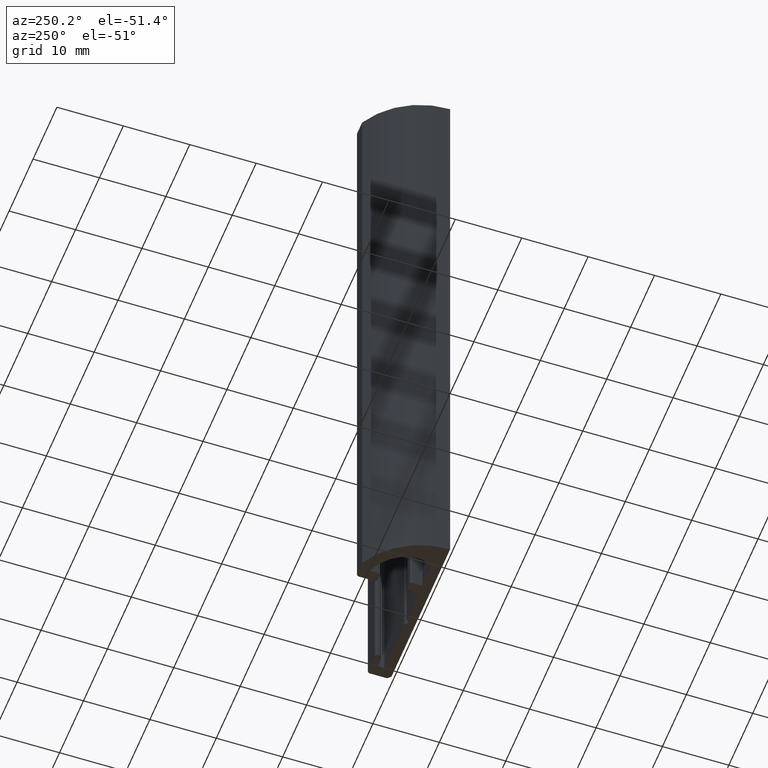
[diagram: clean part render]
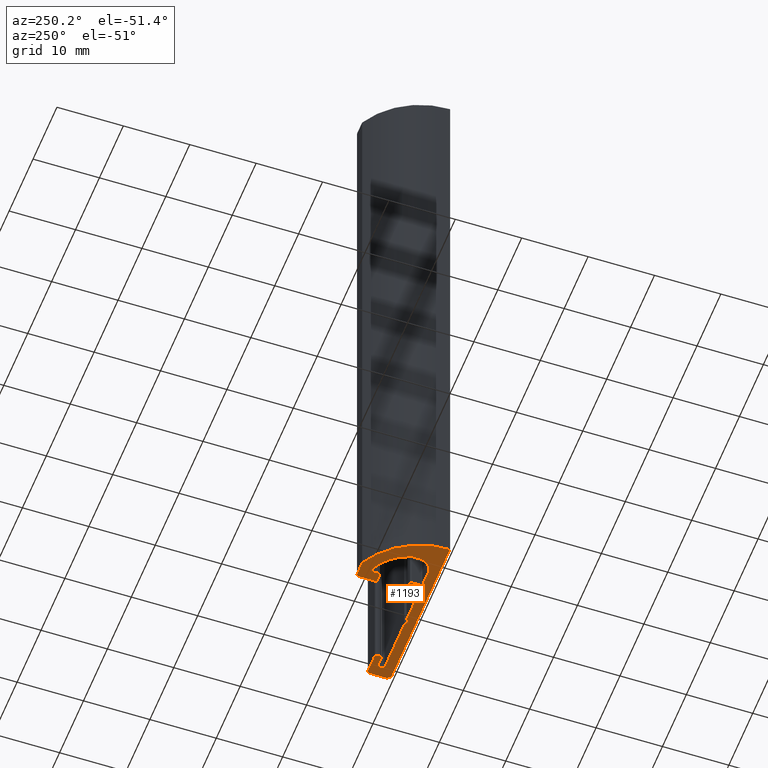
[diagram: same view with one face highlighted and labeled with its STEP entity id]
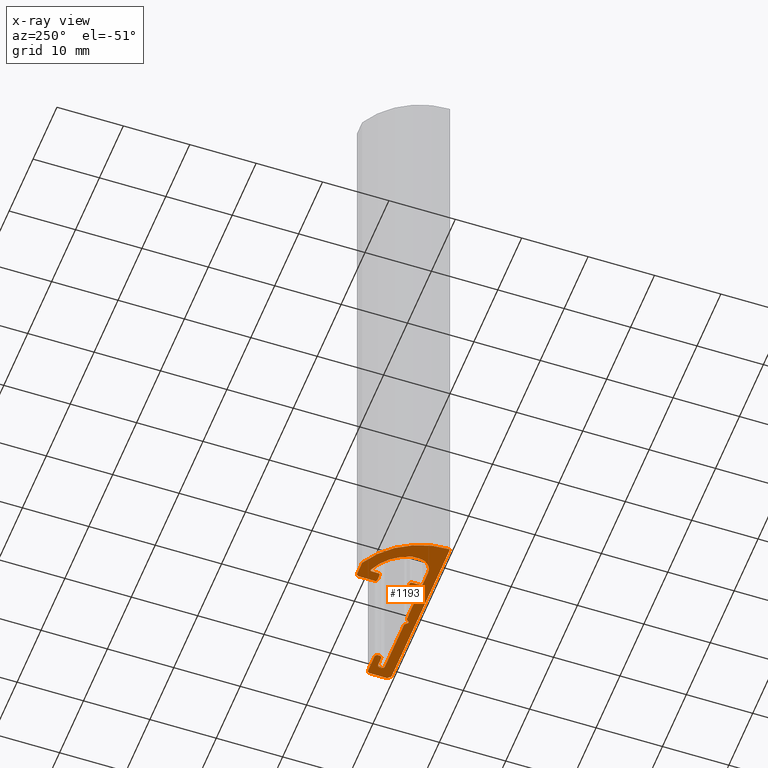
[diagram: x-ray of the same camera — body ghosted, the highlighted face saturated]
A machine part, auxiliary view. The second image highlights one B-rep face of the part: STEP entity #1193.
The next image is the same camera in x-ray: the body ghosted, the highlighted face saturated — about 0% of this face is hidden behind the body in this view.
In plain terms, the highlighted planar face has unit normal (0, 0, 1).
Its self-contained STEP definition (entity closure, byte-faithful):
#7=CARTESIAN_POINT('',(9.244307432465462,3.099999999671184,0.0));
#8=VERTEX_POINT('',#7);
#9=CARTESIAN_POINT('',(9.244307432571418,2.899999999701663,0.0));
#10=VERTEX_POINT('',#9);
#11=CARTESIAN_POINT('',(9.244307432465462,3.099999999671184,0.0));
#12=DIRECTION('',(5.297807E-010,-1.0,0.0));
#13=VECTOR('',#12,0.199999999969521);
#14=LINE('',#11,#13);
#15=EDGE_CURVE('',#8,#10,#14,.T.);
#47=CARTESIAN_POINT('',(9.644307432531377,2.499999999741817,0.0));
#48=VERTEX_POINT('',#47);
#49=CARTESIAN_POINT('',(9.644307432531377,2.899999999701777,0.0));
#50=DIRECTION('',(0.0,0.0,1.0));
#51=DIRECTION('',(-1.0,-2.842171E-013,0.0));
#52=AXIS2_PLACEMENT_3D('',#49,#50,#51);
#53=CIRCLE('',#52,0.399999999959960);
#54=EDGE_CURVE('',#10,#48,#53,.T.);
#80=CARTESIAN_POINT('',(10.844307432411370,2.499999999741817,0.0));
#81=VERTEX_POINT('',#80);
#82=CARTESIAN_POINT('',(9.644307432531377,2.499999999741817,0.0));
#83=DIRECTION('',(1.0,0.0,0.0));
#84=VECTOR('',#83,1.199999999879992);
#85=LINE('',#82,#84);
#86=EDGE_CURVE('',#48,#81,#85,.T.);
#111=CARTESIAN_POINT('',(11.244307432371329,2.099999999781176,0.0));
#112=VERTEX_POINT('',#111);
#113=CARTESIAN_POINT('',(10.844307432411370,2.099999999781858,0.0));
#114=DIRECTION('',(0.0,0.0,-1.0));
#115=DIRECTION('',(1.0,-1.705303E-012,0.0));
#116=AXIS2_PLACEMENT_3D('',#113,#114,#115);
#117=CIRCLE('',#116,0.399999999959960);
#118=EDGE_CURVE('',#81,#112,#117,.T.);
#144=CARTESIAN_POINT('',(11.244307432371329,1.899999999801196,0.0));
#145=VERTEX_POINT('',#144);
#146=CARTESIAN_POINT('',(11.244307432371329,2.099999999781176,0.0));
#147=DIRECTION('',(0.0,-1.0,0.0));
#148=VECTOR('',#147,0.199999999979980);
#149=LINE('',#146,#148);
#150=EDGE_CURVE('',#112,#145,#149,.T.);
#175=CARTESIAN_POINT('',(10.844307432411256,1.499999999825434,0.0));
#176=VERTEX_POINT('',#175);
#177=CARTESIAN_POINT('',(10.844307432411256,1.899999999785450,0.0));
#178=DIRECTION('',(0.0,0.0,-1.0));
#179=DIRECTION('',(0.0,-1.0,0.0));
#180=AXIS2_PLACEMENT_3D('',#177,#178,#179);
#181=CIRCLE('',#180,0.399999999960016);
#182=EDGE_CURVE('',#145,#176,#181,.T.);
#208=CARTESIAN_POINT('',(2.744307433262634,1.499999999815032,0.0));
#209=VERTEX_POINT('',#208);
#210=CARTESIAN_POINT('',(10.844307432411256,1.499999999825434,0.0));
#211=DIRECTION('',(-1.0,-1.284240E-012,0.0));
#212=VECTOR('',#211,8.099999999148622);
#213=LINE('',#210,#212);
#214=EDGE_CURVE('',#176,#209,#213,.T.);
#239=CARTESIAN_POINT('',(2.244307433178619,0.999999999741533,0.0));
#240=VERTEX_POINT('',#239);
#241=CARTESIAN_POINT('',(2.744307433262634,1.499999999815032,0.0));
#242=DIRECTION('',(-0.707106781193983,-0.707106781179112,0.0));
#243=VECTOR('',#242,0.707106781297926);
#244=LINE('',#241,#243);
#245=EDGE_CURVE('',#209,#240,#244,.T.);
#270=CARTESIAN_POINT('',(1.744307433078006,1.499999999841919,0.0));
#271=VERTEX_POINT('',#270);
#272=CARTESIAN_POINT('',(2.244307433178619,0.999999999741533,0.0));
#273=DIRECTION('',(-0.707106781186708,0.707106781186387,0.0));
#274=VECTOR('',#273,0.707106781328675);
#275=LINE('',#272,#274);
#276=EDGE_CURVE('',#240,#271,#275,.T.);
#301=CARTESIAN_POINT('',(-2.755692566471907,1.499999999842089,0.0));
#302=VERTEX_POINT('',#301);
#303=CARTESIAN_POINT('',(1.744307433078006,1.499999999841919,0.0));
#304=DIRECTION('',(-1.0,0.0,0.0));
#305=VECTOR('',#304,4.499999999549914);
#306=LINE('',#303,#305);
#307=EDGE_CURVE('',#271,#302,#306,.T.);
#332=CARTESIAN_POINT('',(-3.255692566421885,1.999999999792067,0.0));
#333=VERTEX_POINT('',#332);
#334=CARTESIAN_POINT('',(-2.755692566471907,1.999999999792067,0.0));
#335=DIRECTION('',(0.0,0.0,-1.0));
#336=DIRECTION('',(1.0,0.0,0.0));
#337=AXIS2_PLACEMENT_3D('',#334,#335,#336);
#338=CIRCLE('',#337,0.499999999950000);
#339=EDGE_CURVE('',#302,#333,#338,.T.);
#365=CARTESIAN_POINT('',(-3.255692566421885,2.999999999691966,0.0));
#366=VERTEX_POINT('',#365);
#367=CARTESIAN_POINT('',(-3.255692566421885,1.999999999792067,0.0));
#368=DIRECTION('',(0.0,1.0,0.0));
#369=VECTOR('',#368,0.999999999899899);
#370=LINE('',#367,#369);
#371=EDGE_CURVE('',#333,#366,#370,.T.);
#396=CARTESIAN_POINT('',(-3.555692566391940,3.299999999661964,0.0));
#397=VERTEX_POINT('',#396);
#398=CARTESIAN_POINT('',(-3.555692566391940,2.999999999691966,0.0));
#399=DIRECTION('',(0.0,0.0,1.0));
#400=DIRECTION('',(1.0,0.0,0.0));
#401=AXIS2_PLACEMENT_3D('',#398,#399,#400);
#402=CIRCLE('',#401,0.299999999970000);
#403=EDGE_CURVE('',#366,#397,#402,.T.);
#429=CARTESIAN_POINT('',(-4.455692566301991,3.299999999661964,0.0));
#430=VERTEX_POINT('',#429);
#431=CARTESIAN_POINT('',(-3.555692566391940,3.299999999661964,0.0));
#432=DIRECTION('',(-1.0,0.0,0.0));
#433=VECTOR('',#432,0.899999999910051);
#434=LINE('',#431,#433);
#435=EDGE_CURVE('',#397,#430,#434,.T.);
#460=CARTESIAN_POINT('',(-4.755692566271932,2.999999999691966,0.0));
#461=VERTEX_POINT('',#460);
#462=CARTESIAN_POINT('',(-4.455692566301991,2.999999999691966,0.0));
#463=DIRECTION('',(0.0,0.0,1.0));
#464=DIRECTION('',(1.0,0.0,0.0));
#465=AXIS2_PLACEMENT_3D('',#462,#463,#464);
#466=CIRCLE('',#465,0.299999999970000);
#467=EDGE_CURVE('',#430,#461,#466,.T.);
#493=CARTESIAN_POINT('',(-4.755692566271932,1.699999999822069,0.0));
#494=VERTEX_POINT('',#493);
#495=CARTESIAN_POINT('',(-4.755692566271932,2.999999999691966,0.0));
#496=DIRECTION('',(0.0,-1.0,0.0));
#497=VECTOR('',#496,1.299999999869897);
#498=LINE('',#495,#497);
#499=EDGE_CURVE('',#461,#494,#498,.T.);
#524=CARTESIAN_POINT('',(-4.955692566251969,1.499999999841919,0.0));
#525=VERTEX_POINT('',#524);
#526=CARTESIAN_POINT('',(-4.955692566251969,1.699999999822069,0.0));
#527=DIRECTION('',(0.0,0.0,-1.0));
#528=DIRECTION('',(1.0,0.0,0.0));
#529=AXIS2_PLACEMENT_3D('',#526,#527,#528);
#530=CIRCLE('',#529,0.199999999979989);
#531=EDGE_CURVE('',#494,#525,#530,.T.);
#557=CARTESIAN_POINT('',(-7.195547831496015,1.499999999841919,0.0));
#558=VERTEX_POINT('',#557);
#559=CARTESIAN_POINT('',(-4.955692566251969,1.499999999841919,0.0));
#560=DIRECTION('',(-1.0,0.0,0.0));
#561=VECTOR('',#560,2.239855265244046);
#562=LINE('',#559,#561);
#563=EDGE_CURVE('',#525,#558,#562,.T.);
#588=CARTESIAN_POINT('',(-9.195547831295926,3.499999999641943,0.0));
#589=VERTEX_POINT('',#588);
#590=CARTESIAN_POINT('',(-7.195547831496015,3.499999999641943,0.0));
#591=DIRECTION('',(0.0,0.0,-1.0));
#592=DIRECTION('',(1.0,0.0,0.0));
#593=AXIS2_PLACEMENT_3D('',#590,#591,#592);
#594=CIRCLE('',#593,1.999999999799999);
#595=EDGE_CURVE('',#558,#589,#594,.T.);
#621=CARTESIAN_POINT('',(-9.195547831296153,4.626529070951960,0.0));
#622=VERTEX_POINT('',#621);
#623=CARTESIAN_POINT('',(-9.195547831295926,3.499999999641943,0.0));
#624=DIRECTION('',(0.0,1.0,0.0));
#625=VECTOR('',#624,1.126529071310415);
#626=LINE('',#623,#625);
#627=EDGE_CURVE('',#589,#622,#626,.T.);
#652=CARTESIAN_POINT('',(-5.032598244687392,9.291287892938783,0.0));
#653=VERTEX_POINT('',#652);
#654=CARTESIAN_POINT('',(-2.254513155987638,2.622113467691463,0.0));
#655=DIRECTION('',(0.0,0.0,-1.0));
#656=DIRECTION('',(1.0,0.0,0.0));
#657=AXIS2_PLACEMENT_3D('',#654,#655,#656);
#658=CIRCLE('',#657,7.224655304886772);
#659=EDGE_CURVE('',#622,#653,#658,.T.);
#685=CARTESIAN_POINT('',(-4.755692566271932,9.106665259937358,0.0));
#686=VERTEX_POINT('',#685);
#687=CARTESIAN_POINT('',(-4.955692566251969,9.106665259937358,0.0));
#688=DIRECTION('',(0.0,0.0,-1.0));
#689=DIRECTION('',(1.0,0.0,0.0));
#690=AXIS2_PLACEMENT_3D('',#687,#688,#689);
#691=CIRCLE('',#690,0.199999999980000);
#692=EDGE_CURVE('',#653,#686,#691,.T.);
#718=CARTESIAN_POINT('',(-4.755692566272046,8.099999999182046,0.0));
#719=VERTEX_POINT('',#718);
#720=CARTESIAN_POINT('',(-4.755692566271932,9.106665259937358,0.0));
#721=DIRECTION('',(0.0,-1.0,0.0));
#722=VECTOR('',#721,1.006665260755312);
#723=LINE('',#720,#722);
#724=EDGE_CURVE('',#686,#719,#723,.T.);
#749=CARTESIAN_POINT('',(-4.455692566301991,7.799999999212048,0.0));
#750=VERTEX_POINT('',#749);
#751=CARTESIAN_POINT('',(-4.455692566301991,8.099999999182046,0.0));
#752=DIRECTION('',(0.0,0.0,1.0));
#753=DIRECTION('',(1.0,0.0,0.0));
#754=AXIS2_PLACEMENT_3D('',#751,#752,#753);
#755=CIRCLE('',#754,0.299999999970000);
#756=EDGE_CURVE('',#719,#750,#755,.T.);
#782=CARTESIAN_POINT('',(-3.563002741764421,7.799999999212048,0.0));
#783=VERTEX_POINT('',#782);
#784=CARTESIAN_POINT('',(-4.455692566301991,7.799999999212048,0.0));
#785=DIRECTION('',(1.0,0.0,0.0));
#786=VECTOR('',#785,0.892689824537570);
#787=LINE('',#784,#786);
#788=EDGE_CURVE('',#750,#783,#787,.T.);
#813=CARTESIAN_POINT('',(-3.263002741794480,8.099999999182046,0.0));
#814=VERTEX_POINT('',#813);
#815=CARTESIAN_POINT('',(-3.563002741764421,8.099999999182046,0.0));
#816=DIRECTION('',(0.0,0.0,1.0));
#817=DIRECTION('',(1.0,0.0,0.0));
#818=AXIS2_PLACEMENT_3D('',#815,#816,#817);
#819=CIRCLE('',#818,0.299999999970000);
#820=EDGE_CURVE('',#783,#814,#819,.T.);
#846=CARTESIAN_POINT('',(-3.263002741794367,10.499999998941917,0.0));
#847=VERTEX_POINT('',#846);
#848=CARTESIAN_POINT('',(-3.263002741794480,8.099999999182046,0.0));
#849=DIRECTION('',(0.0,1.0,0.0));
#850=VECTOR('',#849,2.399999999759871);
#851=LINE('',#848,#850);
#852=EDGE_CURVE('',#814,#847,#851,.T.);
#877=CARTESIAN_POINT('',(-3.663002741754326,10.899999998902047,0.0));
#878=VERTEX_POINT('',#877);
#879=CARTESIAN_POINT('',(-3.663002741754326,10.499999998941917,0.0));
#880=DIRECTION('',(0.0,0.0,1.0));
#881=DIRECTION('',(1.0,0.0,0.0));
#882=AXIS2_PLACEMENT_3D('',#879,#880,#881);
#883=CIRCLE('',#882,0.399999999960000);
#884=EDGE_CURVE('',#847,#878,#883,.T.);
#910=CARTESIAN_POINT('',(-5.762787267910426,10.899999998901933,0.0));
#911=VERTEX_POINT('',#910);
#912=CARTESIAN_POINT('',(-3.663002741754326,10.899999998902047,0.0));
#913=DIRECTION('',(-1.0,0.0,0.0));
#914=VECTOR('',#913,2.099784526156089);
#915=LINE('',#912,#914);
#916=EDGE_CURVE('',#878,#911,#915,.T.);
#941=CARTESIAN_POINT('',(-12.259974374062153,0.0,0.0));
#942=VERTEX_POINT('',#941);
#943=CARTESIAN_POINT('',(-0.264388316395639,0.236160832097198,0.0));
#944=DIRECTION('',(0.0,0.0,1.000000000000000));
#945=DIRECTION('',(-0.458279709881260,0.888808026241409,0.0));
#946=AXIS2_PLACEMENT_3D('',#943,#944,#945);
#947=CIRCLE('',#946,11.997910518315162);
#948=EDGE_CURVE('',#911,#942,#947,.T.);
#974=CARTESIAN_POINT('',(12.259974374062153,0.0,0.0));
#975=VERTEX_POINT('',#974);
#976=CARTESIAN_POINT('',(-12.259974374062153,0.0,0.0));
#977=DIRECTION('',(1.0,0.0,0.0));
#978=VECTOR('',#977,24.519948748124307);
#979=LINE('',#976,#978);
#980=EDGE_CURVE('',#942,#975,#979,.T.);
#1005=CARTESIAN_POINT('',(12.740025623442421,0.480464365027103,0.0));
#1006=VERTEX_POINT('',#1005);
#1007=CARTESIAN_POINT('',(12.259974374062153,0.0,0.0));
#1008=DIRECTION('',(0.706802590746232,0.707410840823361,0.0));
#1009=VECTOR('',#1008,0.679187167202424);
#1010=LINE('',#1007,#1009);
#1011=EDGE_CURVE('',#975,#1006,#1010,.T.);
#1036=CARTESIAN_POINT('',(12.740025623437873,3.099999999671582,0.0));
#1037=VERTEX_POINT('',#1036);
#1038=CARTESIAN_POINT('',(12.740025623442421,0.480464365027103,0.0));
#1039=DIRECTION('',(-1.735985E-012,1.0,0.0));
#1040=VECTOR('',#1039,2.619535634644478);
#1041=LINE('',#1038,#1040);
#1042=EDGE_CURVE('',#1006,#1037,#1041,.T.);
#1067=CARTESIAN_POINT('',(12.340025623644578,3.499999999631541,0.0));
#1068=VERTEX_POINT('',#1067);
#1069=CARTESIAN_POINT('',(12.340025623477914,3.099999999671582,0.0));
#1070=DIRECTION('',(0.0,0.0,1.0));
#1071=DIRECTION('',(1.0,0.0,0.0));
#1072=AXIS2_PLACEMENT_3D('',#1069,#1070,#1071);
#1073=CIRCLE('',#1072,0.399999999959960);
#1074=EDGE_CURVE('',#1037,#1068,#1073,.T.);
#1100=CARTESIAN_POINT('',(9.644307432425535,3.499999999631541,0.0));
#1101=VERTEX_POINT('',#1100);
#1102=CARTESIAN_POINT('',(12.340025623644578,3.499999999631541,0.0));
#1103=DIRECTION('',(-1.0,0.0,0.0));
#1104=VECTOR('',#1103,2.695718191219044);
#1105=LINE('',#1102,#1104);
#1106=EDGE_CURVE('',#1068,#1101,#1105,.T.);
#1131=CARTESIAN_POINT('',(9.644307432425535,3.099999999671525,0.0));
#1132=DIRECTION('',(0.0,0.0,1.0));
#1133=DIRECTION('',(0.0,1.0,0.0));
#1134=AXIS2_PLACEMENT_3D('',#1131,#1132,#1133);
#1135=CIRCLE('',#1134,0.399999999960016);
#1136=EDGE_CURVE('',#1101,#8,#1135,.T.);
#1150=CARTESIAN_POINT('',(-14.762651282674028,-1.090120002095603,0.0));
#1151=DIRECTION('',(0.0,0.0,1.0));
#1152=DIRECTION('',(1.0,0.0,0.0));
#1153=AXIS2_PLACEMENT_3D('',#1150,#1151,#1152);
#1154=PLANE('',#1153);
#1155=ORIENTED_EDGE('',*,*,#1136,.F.);
#1156=ORIENTED_EDGE('',*,*,#1106,.F.);
#1157=ORIENTED_EDGE('',*,*,#1074,.F.);
#1158=ORIENTED_EDGE('',*,*,#1042,.F.);
#1159=ORIENTED_EDGE('',*,*,#1011,.F.);
#1160=ORIENTED_EDGE('',*,*,#980,.F.);
#1161=ORIENTED_EDGE('',*,*,#948,.F.);
#1162=ORIENTED_EDGE('',*,*,#916,.F.);
#1163=ORIENTED_EDGE('',*,*,#884,.F.);
#1164=ORIENTED_EDGE('',*,*,#852,.F.);
#1165=ORIENTED_EDGE('',*,*,#820,.F.);
#1166=ORIENTED_EDGE('',*,*,#788,.F.);
#1167=ORIENTED_EDGE('',*,*,#756,.F.);
#1168=ORIENTED_EDGE('',*,*,#724,.F.);
#1169=ORIENTED_EDGE('',*,*,#692,.F.);
#1170=ORIENTED_EDGE('',*,*,#659,.F.);
#1171=ORIENTED_EDGE('',*,*,#627,.F.);
#1172=ORIENTED_EDGE('',*,*,#595,.F.);
#1173=ORIENTED_EDGE('',*,*,#563,.F.);
#1174=ORIENTED_EDGE('',*,*,#531,.F.);
#1175=ORIENTED_EDGE('',*,*,#499,.F.);
#1176=ORIENTED_EDGE('',*,*,#467,.F.);
#1177=ORIENTED_EDGE('',*,*,#435,.F.);
#1178=ORIENTED_EDGE('',*,*,#403,.F.);
#1179=ORIENTED_EDGE('',*,*,#371,.F.);
#1180=ORIENTED_EDGE('',*,*,#339,.F.);
#1181=ORIENTED_EDGE('',*,*,#307,.F.);
#1182=ORIENTED_EDGE('',*,*,#276,.F.);
#1183=ORIENTED_EDGE('',*,*,#245,.F.);
#1184=ORIENTED_EDGE('',*,*,#214,.F.);
#1185=ORIENTED_EDGE('',*,*,#182,.F.);
#1186=ORIENTED_EDGE('',*,*,#150,.F.);
#1187=ORIENTED_EDGE('',*,*,#118,.F.);
#1188=ORIENTED_EDGE('',*,*,#86,.F.);
#1189=ORIENTED_EDGE('',*,*,#54,.F.);
#1190=ORIENTED_EDGE('',*,*,#15,.F.);
#1191=EDGE_LOOP('',(#1155,#1156,#1157,#1158,#1159,#1160,#1161,#1162,#1163,#1164,#1165,#1166,#1167,#1168,#1169,#1170,#1171,#1172,#1173,#1174,#1175,#1176,#1177,#1178,#1179,#1180,#1181,#1182,#1183,#1184,#1185,#1186,#1187,#1188,#1189,#1190));
#1192=FACE_OUTER_BOUND('',#1191,.T.);
#1193=ADVANCED_FACE('',(#1192),#1154,.F.);